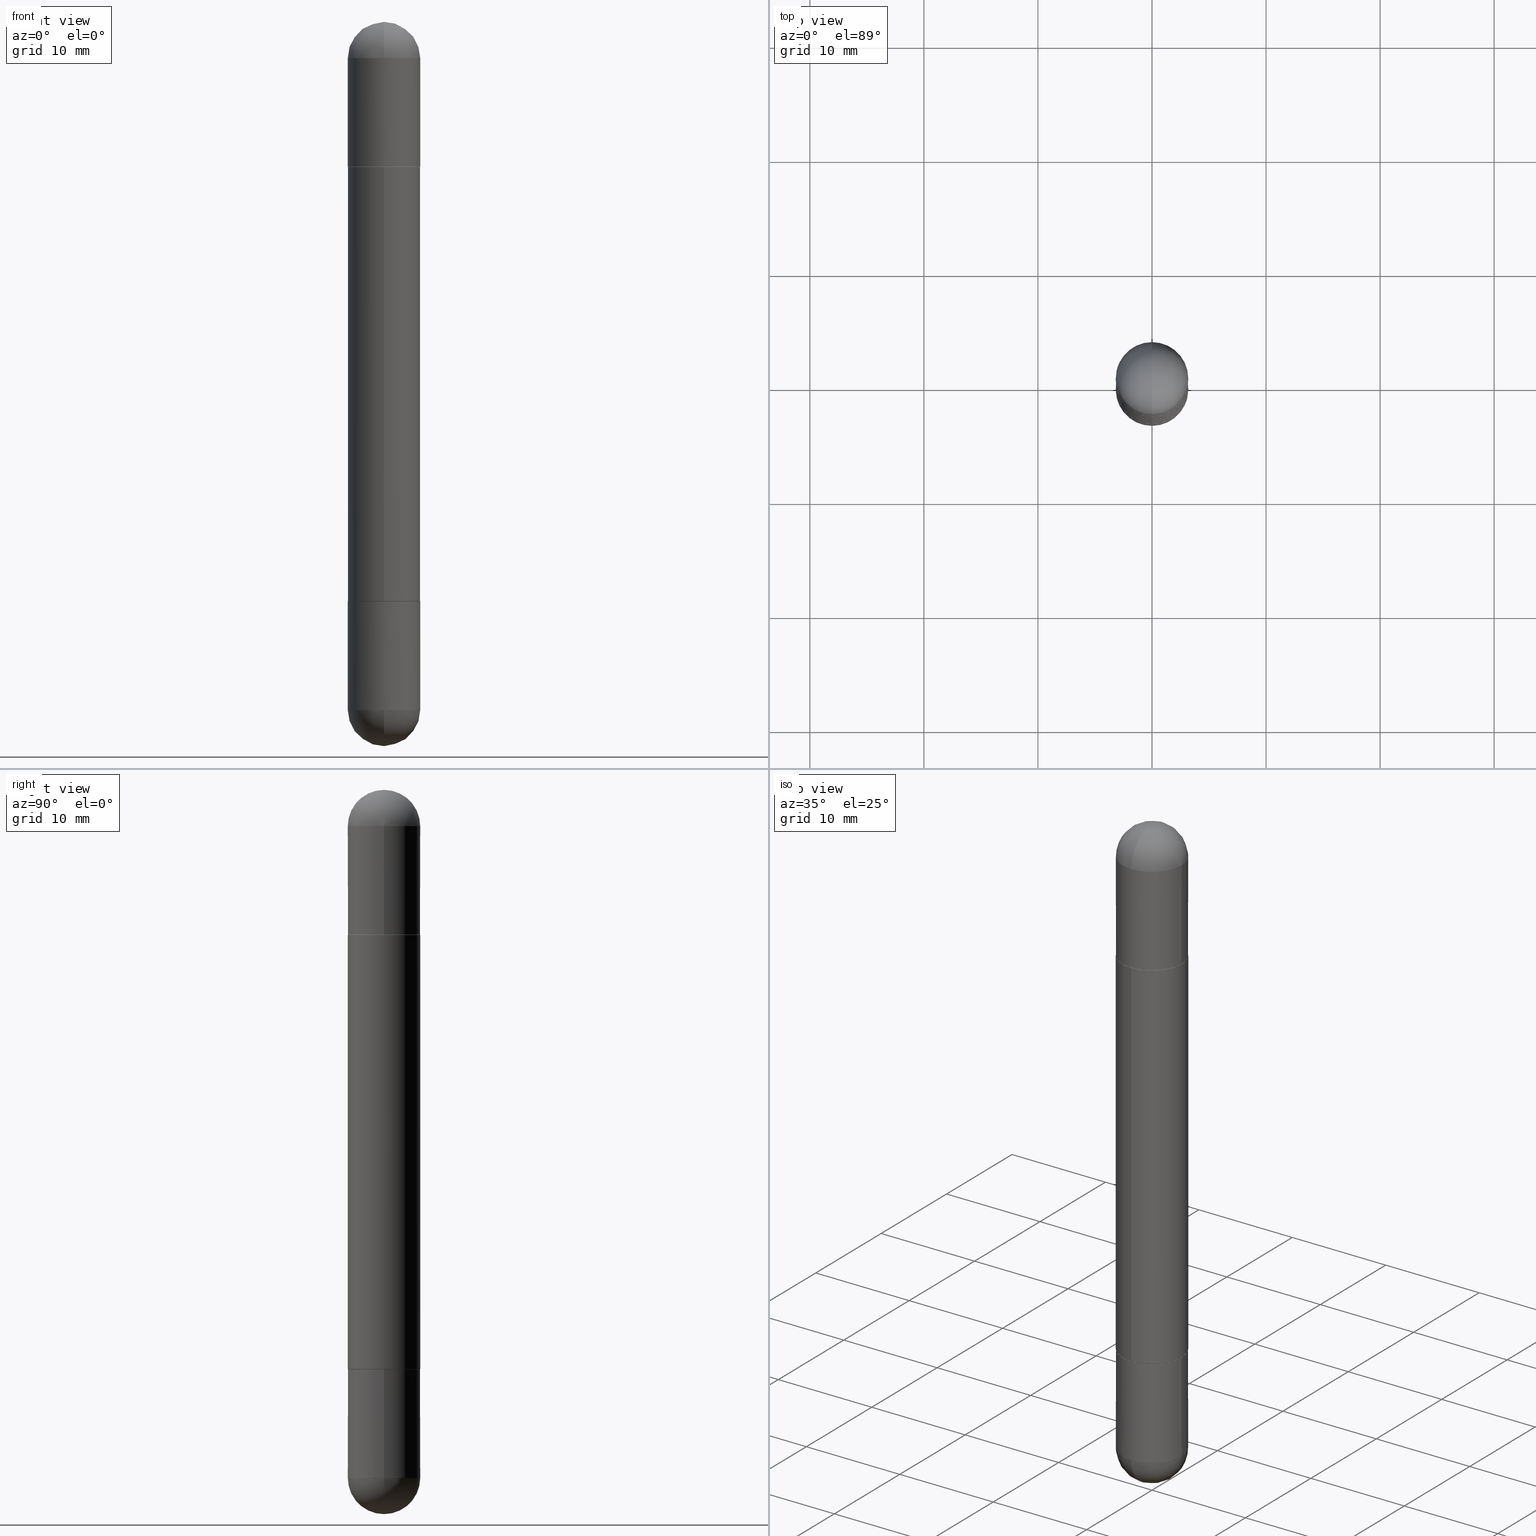
[diagram: canonical four-view strip — front | top / right | iso, engineering-drawing reading convention]
A machine part, canonical four-view strip (front | top / right | iso — engineering-drawing reading convention). The complete STEP part file that produces these views, byte-faithful:
ISO-10303-21;
HEADER;
FILE_DESCRIPTION (( 'STEP AP203' ),
    '1' );
FILE_NAME ('39630.STEP',
    '2024-03-01T12:43:29',
    ( '' ),
    ( '' ),
    'SwSTEP 2.0',
    'SolidWorks 2023',
    '' );
FILE_SCHEMA (( 'CONFIG_CONTROL_DESIGN' ));
ENDSEC;

DATA;
#1 = CYLINDRICAL_SURFACE ( 'NONE', #158, 0.1250000000000000000 ) ;
#2 = CARTESIAN_POINT ( 'NONE',  ( 8.575622497214423328E-16, 0.1250000000000001388, -2.500000000000000000 ) ) ;
#3 = ADVANCED_FACE ( 'NONE', ( #47 ), #584, .T. ) ;
#4 = DIRECTION ( 'NONE',  ( 2.445468806185136597E-29, -3.491481338843145583E-15, 1.000000000000000000 ) ) ;
#5 = ADVANCED_FACE ( 'NONE', ( #107 ), #355, .T. ) ;
#6 = CIRCLE ( 'NONE', #570, 0.1250000000000002776 ) ;
#7 = AXIS2_PLACEMENT_3D ( 'NONE', #714, #529, #594 ) ;
#8 = ADVANCED_FACE ( 'NONE', ( #438 ), #304, .T. ) ;
#9 = CARTESIAN_POINT ( 'NONE',  ( 4.890937612370273194E-29, -6.982962677686291165E-15, -0.5000000000000006661 ) ) ;
#10 = ORIENTED_EDGE ( 'NONE', *, *, #53, .T. ) ;
#11 = DIRECTION ( 'NONE',  ( 6.982962677686265922E-15, 1.000000000000000000, 3.551402391763536859E-15 ) ) ;
#12 = EDGE_CURVE ( 'NONE', #90, #67, #397, .T. ) ;
#13 = CYLINDRICAL_SURFACE ( 'NONE', #110, 0.1250000000000000000 ) ;
#14 = DIRECTION ( 'NONE',  ( -4.937700262165053702E-15, -0.7071067811866175168, -0.7071067811864775177 ) ) ;
#15 = CARTESIAN_POINT ( 'NONE',  ( 0.1250000000000000000, -8.728703347107833388E-16, 6.095220969744919741E-30 ) ) ;
#16 = FACE_OUTER_BOUND ( 'NONE', #142, .T. ) ;
#17 = VERTEX_POINT ( 'NONE', #177 ) ;
#18 = CARTESIAN_POINT ( 'NONE',  ( 8.507017517237187427E-16, 0.1239999999999930186, -0.5000000000000005551 ) ) ;
#19 = AXIS2_PLACEMENT_3D ( 'NONE', #578, #71, #585 ) ;
#20 = PRODUCT_DEFINITION ( 'UNKNOWN', '', #95, #469 ) ;
#21 = CIRCLE ( 'NONE', #443, 0.1250000000000000000 ) ;
#22 = LOCAL_TIME ( 7, 43, 29.00000000000000000, #455 ) ;
#23 = CARTESIAN_POINT ( 'NONE',  ( 0.1250000000000000000, -8.510485763430165164E-15, -0.1250000000000004441 ) ) ;
#24 = ORIENTED_EDGE ( 'NONE', *, *, #302, .F. ) ;
#25 = CARTESIAN_POINT ( 'NONE',  ( 0.1250000000000000000, -8.728703347107833388E-16, -2.500000000000000444 ) ) ;
#26 =( NAMED_UNIT ( * ) PLANE_ANGLE_UNIT ( ) SI_UNIT ( $, .RADIAN. ) );
#27 = ORIENTED_EDGE ( 'NONE', *, *, #437, .F. ) ;
#28 = PERSON_AND_ORGANIZATION ( #364, #524 ) ;
#29 = ORIENTED_EDGE ( 'NONE', *, *, #780, .T. ) ;
#30 = AXIS2_PLACEMENT_3D ( 'NONE', #165, #665, #504 ) ;
#31 = VECTOR ( 'NONE', #117, 39.37007874015748143 ) ;
#32 = AXIS2_PLACEMENT_3D ( 'NONE', #485, #787, #668 ) ;
#33 = ORIENTED_EDGE ( 'NONE', *, *, #744, .T. ) ;
#34 = CARTESIAN_POINT ( 'NONE',  ( 5.476868636775814291E-29, -8.766450547892521992E-15, -2.375000000000000000 ) ) ;
#35 = DIRECTION ( 'NONE',  ( 1.000000000000000000, -6.982962677686270655E-15, 0.000000000000000000 ) ) ;
#36 = DIRECTION ( 'NONE',  ( -1.000000000000000000, 6.982962677686265922E-15, -4.883557194083112901E-29 ) ) ;
#37 = DIRECTION ( 'NONE',  ( -6.982962677686265922E-15, -1.000000000000000000, -3.304654831045479808E-15 ) ) ;
#38 = ORIENTED_EDGE ( 'NONE', *, *, #763, .T. ) ;
#39 =( NAMED_UNIT ( * ) SI_UNIT ( $, .STERADIAN. ) SOLID_ANGLE_UNIT ( ) );
#40 = ORIENTED_EDGE ( 'NONE', *, *, #318, .F. ) ;
#41 = EDGE_CURVE ( 'NONE', #73, #530, #681, .T. ) ;
#42 = DIRECTION ( 'NONE',  ( 2.438088387897960049E-29, -3.491481338843145188E-15, -1.000000000000000000 ) ) ;
#43 = AXIS2_PLACEMENT_3D ( 'NONE', #751, #330, #651 ) ;
#44 = COORDINATED_UNIVERSAL_TIME_OFFSET ( 5, 0, .BEHIND. ) ;
#45 = ORIENTED_EDGE ( 'NONE', *, *, #203, .T. ) ;
#46 = FACE_OUTER_BOUND ( 'NONE', #293, .T. ) ;
#47 = FACE_OUTER_BOUND ( 'NONE', #801, .T. ) ;
#48 = ORIENTED_EDGE ( 'NONE', *, *, #60, .F. ) ;
#49 = ORIENTED_EDGE ( 'NONE', *, *, #225, .T. ) ;
#50 = DIRECTION ( 'NONE',  ( -2.445190853469272491E-29, 3.491879382952348982E-15, -1.000000000000000000 ) ) ;
#51 = CARTESIAN_POINT ( 'NONE',  ( 5.787897026856327965E-29, -9.195231672753244292E-15, -2.561107494060246644E-16 ) ) ;
#52 = ORIENTED_EDGE ( 'NONE', *, *, #357, .T. ) ;
#53 = EDGE_CURVE ( 'NONE', #109, #639, #201, .T. ) ;
#54 = PLANE ( 'NONE',  #656 ) ;
#55 = DIRECTION ( 'NONE',  ( 1.000000000000000000, -6.982962677686270655E-15, 0.000000000000000000 ) ) ;
#56 = CALENDAR_DATE ( 2024, 1, 3 ) ;
#57 = ORIENTED_EDGE ( 'NONE', *, *, #12, .F. ) ;
#58 = DIRECTION ( 'NONE',  ( -6.982962677686265922E-15, -1.000000000000000000, -3.491879382952348982E-15 ) ) ;
#59 = DIRECTION ( 'NONE',  ( -2.445468806185136597E-29, 3.491481338843145583E-15, -1.000000000000000000 ) ) ;
#60 = EDGE_CURVE ( 'NONE', #17, #294, #185, .T. ) ;
#61 = APPROVAL_STATUS ( 'not_yet_approved' ) ;
#62 = CARTESIAN_POINT ( 'NONE',  ( 5.807988414689700538E-29, -8.292268179752471696E-15, -0.1250000000000004441 ) ) ;
#63 = CYLINDRICAL_SURFACE ( 'NONE', #712, 0.1250000000000000000 ) ;
#64 = ADVANCED_FACE ( 'NONE', ( #735 ), #536, .T. ) ;
#65 = DIRECTION ( 'NONE',  ( -2.445190853469272491E-29, 3.491879382952348982E-15, -1.000000000000000000 ) ) ;
#66 = DIRECTION ( 'NONE',  ( -6.982962677686265922E-15, -1.000000000000000000, 3.491879382952348982E-15 ) ) ;
#67 = VERTEX_POINT ( 'NONE', #444 ) ;
#68 = AXIS2_PLACEMENT_3D ( 'NONE', #211, #150, #472 ) ;
#69 = AXIS2_PLACEMENT_3D ( 'NONE', #627, #50, #759 ) ;
#70 = DIRECTION ( 'NONE',  ( -2.445190853469272491E-29, 3.491879382952348982E-15, -1.000000000000000000 ) ) ;
#71 = DIRECTION ( 'NONE',  ( -2.445190853469272491E-29, 3.491879382952348982E-15, -1.000000000000000000 ) ) ;
#72 = FACE_OUTER_BOUND ( 'NONE', #342, .T. ) ;
#73 = VERTEX_POINT ( 'NONE', #624 ) ;
#74 = CARTESIAN_POINT ( 'NONE',  ( 5.807988414689700538E-29, -8.292268179752471696E-15, -2.375000000000000000 ) ) ;
#75 = CARTESIAN_POINT ( 'NONE',  ( 0.000000000000000000, 0.000000000000000000, -2.500000000000000444 ) ) ;
#76 = DIRECTION ( 'NONE',  ( -6.982962677686265922E-15, -1.000000000000000000, 4.370956789862811683E-15 ) ) ;
#77 = ORIENTED_EDGE ( 'NONE', *, *, #543, .F. ) ;
#78 = ADVANCED_FACE ( 'NONE', ( #689 ), #558, .T. ) ;
#79 = CARTESIAN_POINT ( 'NONE',  ( 0.1250000000000000000, -8.728703347107833388E-16, -2.500000000000000444 ) ) ;
#80 = LINE ( 'NONE', #716, #597 ) ;
#81 = AXIS2_PLACEMENT_3D ( 'NONE', #628, #362, #567 ) ;
#82 = FACE_OUTER_BOUND ( 'NONE', #168, .T. ) ;
#83 = CIRCLE ( 'NONE', #236, 0.1239999999999999991 ) ;
#84 = CONICAL_SURFACE ( 'NONE', #555, 0.1239999999999999991, 0.7853981633975507526 ) ;
#85 = CIRCLE ( 'NONE', #388, 0.1250000000000001943 ) ;
#86 = DIRECTION ( 'NONE',  ( 2.445468806185136597E-29, -3.491481338843145583E-15, 1.000000000000000000 ) ) ;
#87 = ORIENTED_EDGE ( 'NONE', *, *, #41, .F. ) ;
#88 = DIRECTION ( 'NONE',  ( 1.000000000000000000, 0.000000000000000000, 0.000000000000000000 ) ) ;
#89 = CARTESIAN_POINT ( 'NONE',  ( 5.807988414689700538E-29, -8.292268179752471696E-15, -2.375000000000000000 ) ) ;
#90 = VERTEX_POINT ( 'NONE', #51 ) ;
#91 = EDGE_CURVE ( 'NONE', #433, #307, #762, .T. ) ;
#92 = AXIS2_PLACEMENT_3D ( 'NONE', #551, #114, #237 ) ;
#93 = AXIS2_PLACEMENT_3D ( 'NONE', #137, #210, #538 ) ;
#94 = CARTESIAN_POINT ( 'NONE',  ( 4.890381706938544982E-29, -6.983758765904696386E-15, -0.5000000000000009992 ) ) ;
#95 = PRODUCT_DEFINITION_FORMATION_WITH_SPECIFIED_SOURCE ( 'ANY', '', #664, .NOT_KNOWN. ) ;
#96 = ORIENTED_EDGE ( 'NONE', *, *, #437, .T. ) ;
#97 = DIRECTION ( 'NONE',  ( -6.982962677686265922E-15, -1.000000000000000000, 4.370956789862811683E-15 ) ) ;
#98 = APPLICATION_CONTEXT ( 'configuration controlled 3d designs of mechanical parts and assemblies' ) ;
#99 = FACE_OUTER_BOUND ( 'NONE', #194, .T. ) ;
#100 = APPLICATION_PROTOCOL_DEFINITION ( 'international standard', 'config_control_design', 1994, #545 ) ;
#101 = ORIENTED_EDGE ( 'NONE', *, *, #719, .T. ) ;
#102 = EDGE_CURVE ( 'NONE', #782, #423, #701, .T. ) ;
#103 = CARTESIAN_POINT ( 'NONE',  ( 4.890381706938544982E-29, -6.983758765904696386E-15, -0.5000000000000009992 ) ) ;
#104 = COORDINATED_UNIVERSAL_TIME_OFFSET ( 5, 0, .BEHIND. ) ;
#105 = ORIENTED_EDGE ( 'NONE', *, *, #147, .F. ) ;
#106 = CARTESIAN_POINT ( 'NONE',  ( 5.476868636775814291E-29, -8.766450547892521992E-15, -0.1250000000000004441 ) ) ;
#107 = FACE_OUTER_BOUND ( 'NONE', #620, .T. ) ;
#108 = VECTOR ( 'NONE', #589, 39.37007874015748143 ) ;
#109 = VERTEX_POINT ( 'NONE', #790 ) ;
#110 = AXIS2_PLACEMENT_3D ( 'NONE', #75, #278, #779 ) ;
#111 = PERSON_AND_ORGANIZATION_ROLE ( 'classification_officer' ) ;
#112 = VERTEX_POINT ( 'NONE', #489 ) ;
#113 = FACE_OUTER_BOUND ( 'NONE', #363, .T. ) ;
#114 = DIRECTION ( 'NONE',  ( 2.445468806185136597E-29, -3.491481338843145583E-15, 1.000000000000000000 ) ) ;
#115 = PERSON_AND_ORGANIZATION_ROLE ( 'design_supplier' ) ;
#116 = ORIENTED_EDGE ( 'NONE', *, *, #602, .T. ) ;
#117 = DIRECTION ( 'NONE',  ( -2.445468806185136877E-29, 3.491481338843145188E-15, -1.000000000000000000 ) ) ;
#118 = DIRECTION ( 'NONE',  ( 1.000000000000000000, -6.982962677686265922E-15, -4.883557194083112901E-29 ) ) ;
#119 = CALENDAR_DATE ( 2024, 1, 3 ) ;
#120 = ORIENTED_EDGE ( 'NONE', *, *, #282, .T. ) ;
#121 = MANIFOLD_SOLID_BREP ( 'Body-Move/Copy2[1]', #492 ) ;
#122 = DIRECTION ( 'NONE',  ( 2.445468806185136597E-29, -3.491481338843145583E-15, 1.000000000000000000 ) ) ;
#123 = DIRECTION ( 'NONE',  ( -2.445190853469272491E-29, 3.491879382952348982E-15, -1.000000000000000000 ) ) ;
#124 = EDGE_CURVE ( 'NONE', #73, #109, #340, .T. ) ;
#125 = APPROVAL_ROLE ( '' ) ;
#126 = ORIENTED_EDGE ( 'NONE', *, *, #592, .T. ) ;
#127 = CIRCLE ( 'NONE', #226, 0.1250000000000000000 ) ;
#128 = CARTESIAN_POINT ( 'NONE',  ( 4.890381706938545543E-29, -6.983758765904697175E-15, -0.5000000000000006661 ) ) ;
#129 = AXIS2_PLACEMENT_3D ( 'NONE', #806, #753, #195 ) ;
#130 = CC_DESIGN_APPROVAL ( #369, ( #20 ) ) ;
#131 = ADVANCED_FACE ( 'NONE', ( #99 ), #428, .F. ) ;
#132 = LINE ( 'NONE', #448, #285 ) ;
#133 = CARTESIAN_POINT ( 'NONE',  ( 4.890381706938544982E-29, -6.983758765904696386E-15, -0.5000000000000009992 ) ) ;
#134 = EDGE_CURVE ( 'NONE', #563, #727, #235, .T. ) ;
#135 = DIRECTION ( 'NONE',  ( 2.445190853469272491E-29, -3.491879382952348982E-15, 1.000000000000000000 ) ) ;
#136 = MANIFOLD_SOLID_BREP ( 'Mirror4[1]', #367 ) ;
#137 = CARTESIAN_POINT ( 'NONE',  ( 5.807988414689700538E-29, -8.292268179752471696E-15, -0.1250000000000004441 ) ) ;
#138 = ORIENTED_EDGE ( 'NONE', *, *, #218, .F. ) ;
#139 = LINE ( 'NONE', #395, #275 ) ;
#140 = PLANE ( 'NONE',  #546 ) ;
#141 = DIRECTION ( 'NONE',  ( -2.445190853469272491E-29, 3.491879382952348982E-15, 1.000000000000000000 ) ) ;
#142 = EDGE_LOOP ( 'NONE', ( #736, #224, #52, #126 ) ) ;
#143 = AXIS2_PLACEMENT_3D ( 'NONE', #241, #234, #500 ) ;
#144 = AXIS2_PLACEMENT_3D ( 'NONE', #323, #654, #598 ) ;
#145 = CARTESIAN_POINT ( 'NONE',  ( -8.658873720330480207E-16, -0.1240000000000069796, -1.999999999999999112 ) ) ;
#146 = CIRCLE ( 'NONE', #416, 0.1250000000000002776 ) ;
#147 = EDGE_CURVE ( 'NONE', #421, #112, #646, .T. ) ;
#148 = DIRECTION ( 'NONE',  ( 2.445468806185136597E-29, -3.491481338843145583E-15, 1.000000000000000000 ) ) ;
#149 = VERTEX_POINT ( 'NONE', #740 ) ;
#150 = DIRECTION ( 'NONE',  ( -2.445468806185136597E-29, 3.491481338843145583E-15, 1.000000000000000000 ) ) ;
#151 = DIRECTION ( 'NONE',  ( 1.000000000000000000, -6.982962677686266711E-15, 4.876176775795935793E-29 ) ) ;
#152 = ADVANCED_FACE ( 'NONE', ( #82 ), #809, .T. ) ;
#153 = ORIENTED_EDGE ( 'NONE', *, *, #526, .T. ) ;
#154 = DIRECTION ( 'NONE',  ( 4.851104656541460468E-15, 0.7071067811866224018, -0.7071067811864726327 ) ) ;
#155 = CARTESIAN_POINT ( 'NONE',  ( 4.890381706938544982E-29, -6.983758765904696386E-15, -1.999999999999999778 ) ) ;
#156 =( LENGTH_UNIT ( ) NAMED_UNIT ( * ) SI_UNIT ( $, .METRE. ) );
#157 = AXIS2_PLACEMENT_3D ( 'NONE', #375, #309, #807 ) ;
#158 = AXIS2_PLACEMENT_3D ( 'NONE', #743, #748, #151 ) ;
#159 = EDGE_CURVE ( 'NONE', #290, #439, #473, .T. ) ;
#160 = CARTESIAN_POINT ( 'NONE',  ( 8.575622497214423328E-16, 0.1250000000000001388, -2.500000000000000000 ) ) ;
#161 = CC_DESIGN_PERSON_AND_ORGANIZATION_ASSIGNMENT ( #815, #111, ( #206 ) ) ;
#162 = ORIENTED_EDGE ( 'NONE', *, *, #520, .T. ) ;
#163 = CARTESIAN_POINT ( 'NONE',  ( 5.476868636775814291E-29, -8.766450547892521992E-15, -0.1250000000000004441 ) ) ;
#164 = EDGE_CURVE ( 'NONE', #727, #240, #477, .T. ) ;
#165 = CARTESIAN_POINT ( 'NONE',  ( 0.000000000000000000, 0.000000000000000000, -2.500000000000000444 ) ) ;
#166 = DIRECTION ( 'NONE',  ( 1.000000000000000000, -6.860497997771530774E-15, -4.840798879624142912E-29 ) ) ;
#167 = EDGE_LOOP ( 'NONE', ( #229, #381, #120, #512 ) ) ;
#168 = EDGE_LOOP ( 'NONE', ( #499, #231, #746, #387 ) ) ;
#169 = AXIS2_PLACEMENT_3D ( 'NONE', #803, #358, #35 ) ;
#170 = AXIS2_PLACEMENT_3D ( 'NONE', #155, #412, #383 ) ;
#171 = DIRECTION ( 'NONE',  ( 1.000000000000000000, -6.982962677686270655E-15, 0.000000000000000000 ) ) ;
#172 = AXIS2_PLACEMENT_3D ( 'NONE', #291, #86, #718 ) ;
#173 = VERTEX_POINT ( 'NONE', #778 ) ;
#174 = EDGE_CURVE ( 'NONE', #307, #173, #693, .T. ) ;
#175 = CARTESIAN_POINT ( 'NONE',  ( 5.476868636775814291E-29, -8.766450547892521992E-15, -0.1250000000000004441 ) ) ;
#176 = EDGE_LOOP ( 'NONE', ( #57, #767, #698, #435 ) ) ;
#177 = CARTESIAN_POINT ( 'NONE',  ( 8.846257060213744265E-16, 0.1239999999999930186, -2.000000000000000444 ) ) ;
#178 = ORIENTED_EDGE ( 'NONE', *, *, #174, .F. ) ;
#179 = DATE_AND_TIME ( #575, #557 ) ;
#180 = EDGE_LOOP ( 'NONE', ( #429, #502, #414, #178, #316 ) ) ;
#181 = DIRECTION ( 'NONE',  ( -6.982962677686265922E-15, -1.000000000000000000, -4.370956789862816416E-15 ) ) ;
#182 = DATE_AND_TIME ( #239, #599 ) ;
#183 = EDGE_LOOP ( 'NONE', ( #77, #511, #400, #816 ) ) ;
#184 = DIRECTION ( 'NONE',  ( -0.000000000000000000, -0.000000000000000000, -1.000000000000000000 ) ) ;
#185 = LINE ( 'NONE', #245, #343 ) ;
#186 = CLOSED_SHELL ( 'NONE', ( #78, #253, #517, #401, #335 ) ) ;
#187 = AXIS2_PLACEMENT_3D ( 'NONE', #802, #184, #259 ) ;
#188 = EDGE_LOOP ( 'NONE', ( #105, #729, #516, #591 ) ) ;
#189 = CC_DESIGN_SECURITY_CLASSIFICATION ( #206, ( #95 ) ) ;
#190 = DIRECTION ( 'NONE',  ( 2.445190853469272491E-29, -3.491879382952348982E-15, 1.000000000000000000 ) ) ;
#191 = FACE_OUTER_BOUND ( 'NONE', #805, .T. ) ;
#192 = CARTESIAN_POINT ( 'NONE',  ( 8.575622497214919324E-16, 0.1249999999999932693, -0.5010000000000006670 ) ) ;
#193 = PERSON_AND_ORGANIZATION_ROLE ( 'creator' ) ;
#194 = EDGE_LOOP ( 'NONE', ( #738, #405 ) ) ;
#195 = DIRECTION ( 'NONE',  ( -7.105427357601000281E-15, -1.000000000000000000, 0.000000000000000000 ) ) ;
#196 = CARTESIAN_POINT ( 'NONE',  ( -0.1250000000000000000, -6.749437009019255804E-15, -2.000000000000000000 ) ) ;
#197 = APPROVAL_ROLE ( '' ) ;
#198 = ORIENTED_EDGE ( 'NONE', *, *, #218, .T. ) ;
#199 = DIRECTION ( 'NONE',  ( -6.982962677686265922E-15, -1.000000000000000000, -3.278217592397108762E-15 ) ) ;
#200 = CARTESIAN_POINT ( 'NONE',  ( 8.728703347108321496E-16, 0.1249999999999930195, -0.5000000000000001110 ) ) ;
#201 = CIRCLE ( 'NONE', #169, 0.1250000000000000000 ) ;
#202 = CIRCLE ( 'NONE', #537, 0.1250000000000000000 ) ;
#203 = EDGE_CURVE ( 'NONE', #655, #243, #621, .T. ) ;
#204 = CARTESIAN_POINT ( 'NONE',  ( 4.887936516085074964E-29, -6.980266886521743346E-15, -0.5010000000000010001 ) ) ;
#205 = ORIENTED_EDGE ( 'NONE', *, *, #102, .T. ) ;
#206 = SECURITY_CLASSIFICATION ( '', '', #242 ) ;
#207 = CARTESIAN_POINT ( 'NONE',  ( -8.728703347107363030E-16, -0.1250000000000072442, -1.998999999999999000 ) ) ;
#208 = ORIENTED_EDGE ( 'NONE', *, *, #450, .T. ) ;
#209 = DIRECTION ( 'NONE',  ( 6.982962677686265922E-15, 1.000000000000000000, -4.370956789862814839E-15 ) ) ;
#210 = DIRECTION ( 'NONE',  ( 2.445468806185136597E-29, -3.491481338843145583E-15, 1.000000000000000000 ) ) ;
#211 = CARTESIAN_POINT ( 'NONE',  ( 4.890937612370273194E-29, -6.982962677686291165E-15, -2.000000000000000000 ) ) ;
#212 = DIRECTION ( 'NONE',  ( 1.000000000000000000, -6.982962677686270655E-15, 0.000000000000000000 ) ) ;
#213 = AXIS2_PLACEMENT_3D ( 'NONE', #319, #647, #312 ) ;
#214 = CIRCLE ( 'NONE', #637, 0.1250000000000000000 ) ;
#215 = CARTESIAN_POINT ( 'NONE',  ( 0.1250000000000000000, -8.510485763430165164E-15, -0.1250000000000004441 ) ) ;
#216 = AXIS2_PLACEMENT_3D ( 'NONE', #723, #230, #97 ) ;
#217 = CARTESIAN_POINT ( 'NONE',  ( 4.890937612370273194E-29, -6.982962677686291165E-15, -0.5000000000000006661 ) ) ;
#218 = EDGE_CURVE ( 'NONE', #568, #786, #6, .T. ) ;
#219 = ORIENTED_EDGE ( 'NONE', *, *, #53, .F. ) ;
#220 = CARTESIAN_POINT ( 'NONE',  ( -8.658873720330480207E-16, -0.1240000000000069796, -0.5000000000000013323 ) ) ;
#221 = CARTESIAN_POINT ( 'NONE',  ( 0.000000000000000000, 0.000000000000000000, 0.000000000000000000 ) ) ;
#222 = ORIENTED_EDGE ( 'NONE', *, *, #641, .T. ) ;
#223 = EDGE_CURVE ( 'NONE', #439, #287, #593, .T. ) ;
#224 = ORIENTED_EDGE ( 'NONE', *, *, #425, .F. ) ;
#225 = EDGE_CURVE ( 'NONE', #639, #695, #653, .T. ) ;
#226 = AXIS2_PLACEMENT_3D ( 'NONE', #74, #345, #55 ) ;
#227 = VECTOR ( 'NONE', #123, 39.37007874015748143 ) ;
#228 =( GEOMETRIC_REPRESENTATION_CONTEXT ( 3 ) GLOBAL_UNCERTAINTY_ASSIGNED_CONTEXT ( ( #273 ) ) GLOBAL_UNIT_ASSIGNED_CONTEXT ( ( #417, #26, #39 ) ) REPRESENTATION_CONTEXT ( 'NONE', 'WORKASPACE' ) );
#229 = ORIENTED_EDGE ( 'NONE', *, *, #261, .F. ) ;
#230 = DIRECTION ( 'NONE',  ( -2.445190853469272491E-29, 3.491879382952348982E-15, 1.000000000000000000 ) ) ;
#231 = ORIENTED_EDGE ( 'NONE', *, *, #60, .T. ) ;
#232 = CARTESIAN_POINT ( 'NONE',  ( 4.887936516085074964E-29, -6.980266886521743346E-15, -0.5010000000000010001 ) ) ;
#233 = EDGE_CURVE ( 'NONE', #359, #290, #127, .T. ) ;
#234 = DIRECTION ( 'NONE',  ( -2.445468806185136597E-29, 3.491481338843145583E-15, -1.000000000000000000 ) ) ;
#235 = CIRCLE ( 'NONE', #508, 0.1239999999999999991 ) ;
#236 = AXIS2_PLACEMENT_3D ( 'NONE', #133, #777, #341 ) ;
#237 = DIRECTION ( 'NONE',  ( 1.000000000000000000, -6.982962677686270655E-15, 0.000000000000000000 ) ) ;
#238 = ORIENTED_EDGE ( 'NONE', *, *, #788, .F. ) ;
#239 = CALENDAR_DATE ( 2024, 1, 3 ) ;
#240 = VERTEX_POINT ( 'NONE', #192 ) ;
#241 = CARTESIAN_POINT ( 'NONE',  ( 0.000000000000000000, 0.000000000000000000, -2.500000000000000444 ) ) ;
#242 = SECURITY_CLASSIFICATION_LEVEL ( 'unclassified' ) ;
#243 = VERTEX_POINT ( 'NONE', #220 ) ;
#244 = DIRECTION ( 'NONE',  ( -2.445190853469272491E-29, 3.491879382952348982E-15, -1.000000000000000000 ) ) ;
#245 = CARTESIAN_POINT ( 'NONE',  ( 8.810729923425729363E-16, 0.1239999999999930186, -2.000000000000000444 ) ) ;
#246 = PERSON_AND_ORGANIZATION ( #364, #524 ) ;
#247 = ORIENTED_EDGE ( 'NONE', *, *, #124, .T. ) ;
#248 = CARTESIAN_POINT ( 'NONE',  ( 4.890937612370273194E-29, -6.982962677686291165E-15, -0.5000000000000006661 ) ) ;
#249 = FACE_OUTER_BOUND ( 'NONE', #662, .T. ) ;
#250 = CARTESIAN_POINT ( 'NONE',  ( 0.000000000000000000, 0.000000000000000000, -2.500000000000000444 ) ) ;
#251 = AXIS2_PLACEMENT_3D ( 'NONE', #272, #313, #270 ) ;
#252 = CIRCLE ( 'NONE', #368, 0.1239999999999999991 ) ;
#253 = ADVANCED_FACE ( 'NONE', ( #633 ), #717, .T. ) ;
#254 = EDGE_LOOP ( 'NONE', ( #684, #576, #162, #350 ) ) ;
#255 = DIRECTION ( 'NONE',  ( -2.445190853469272211E-29, 3.491879382952348982E-15, -1.000000000000000000 ) ) ;
#256 = DIRECTION ( 'NONE',  ( -2.445468806185136597E-29, 3.491481338843145583E-15, 1.000000000000000000 ) ) ;
#257 = LINE ( 'NONE', #601, #325 ) ;
#258 = ORIENTED_EDGE ( 'NONE', *, *, #458, .F. ) ;
#259 = DIRECTION ( 'NONE',  ( -1.000000000000000000, 0.000000000000000000, 0.000000000000000000 ) ) ;
#260 = DIRECTION ( 'NONE',  ( 1.000000000000000000, -6.982962677686270655E-15, 0.000000000000000000 ) ) ;
#261 = EDGE_CURVE ( 'NONE', #655, #568, #257, .T. ) ;
#262 = CARTESIAN_POINT ( 'NONE',  ( 0.000000000000000000, 0.000000000000000000, -2.500000000000000444 ) ) ;
#263 = CARTESIAN_POINT ( 'NONE',  ( 8.728703347108403340E-16, 0.1249999999999915623, -0.1250000000000000000 ) ) ;
#264 = AXIS2_PLACEMENT_3D ( 'NONE', #728, #495, #171 ) ;
#265 = AXIS2_PLACEMENT_3D ( 'NONE', #200, #384, #638 ) ;
#266 = CARTESIAN_POINT ( 'NONE',  ( 5.807988414689700538E-29, -8.292268179752471696E-15, -2.375000000000000000 ) ) ;
#267 = AXIS2_PLACEMENT_3D ( 'NONE', #89, #616, #347 ) ;
#268 = CARTESIAN_POINT ( 'NONE',  ( -0.1250000000000000000, 8.575622497214414453E-16, -2.500000000000000444 ) ) ;
#269 = CYLINDRICAL_SURFACE ( 'NONE', #462, 0.1250000000000000000 ) ;
#270 = DIRECTION ( 'NONE',  ( -6.982962677686265922E-15, -1.000000000000000000, -3.304654831045479808E-15 ) ) ;
#271 = DIRECTION ( 'NONE',  ( 2.438088387897960049E-29, -3.491481338843145188E-15, 1.000000000000000000 ) ) ;
#272 = CARTESIAN_POINT ( 'NONE',  ( 4.890381706938544982E-29, -6.983758765904696386E-15, -0.5000000000000009992 ) ) ;
#273 = UNCERTAINTY_MEASURE_WITH_UNIT (LENGTH_MEASURE( 1.000000000000000082E-05 ), #417, 'distance_accuracy_value', 'NONE');
#274 = VERTEX_POINT ( 'NONE', #769 ) ;
#275 = VECTOR ( 'NONE', #70, 39.37007874015748143 ) ;
#276 = CIRCLE ( 'NONE', #687, 0.1250000000000002776 ) ;
#277 = DIRECTION ( 'NONE',  ( -2.445468806185136877E-29, 3.491481338843145188E-15, -1.000000000000000000 ) ) ;
#278 = DIRECTION ( 'NONE',  ( -2.445468806185136597E-29, 3.491481338843145583E-15, -1.000000000000000000 ) ) ;
#279 = CARTESIAN_POINT ( 'NONE',  ( 3.056488566836591455E-29, -4.364849228690437312E-15, -1.250000000000000222 ) ) ;
#280 = ORIENTED_EDGE ( 'NONE', *, *, #164, .F. ) ;
#281 = DIRECTION ( 'NONE',  ( 2.445190853469272491E-29, -3.491879382952348982E-15, 1.000000000000000000 ) ) ;
#282 = EDGE_CURVE ( 'NONE', #243, #786, #406, .T. ) ;
#283 = MECHANICAL_CONTEXT ( 'NONE', #545, 'mechanical' ) ;
#284 = VECTOR ( 'NONE', #814, 39.37007874015748143 ) ;
#285 = VECTOR ( 'NONE', #379, 39.37007874015748143 ) ;
#286 = ORIENTED_EDGE ( 'NONE', *, *, #634, .F. ) ;
#287 = VERTEX_POINT ( 'NONE', #480 ) ;
#288 = ADVANCED_FACE ( 'NONE', ( #515 ), #755, .T. ) ;
#289 = DIRECTION ( 'NONE',  ( -6.982962677686265922E-15, -1.000000000000000000, 4.406206441393973340E-15 ) ) ;
#290 = VERTEX_POINT ( 'NONE', #707 ) ;
#291 = CARTESIAN_POINT ( 'NONE',  ( 4.890937612370273194E-29, -6.982962677686291165E-15, -0.5000000000000006661 ) ) ;
#292 = EDGE_LOOP ( 'NONE', ( #554, #617 ) ) ;
#293 = EDGE_LOOP ( 'NONE', ( #138, #301, #484, #296 ) ) ;
#294 = VERTEX_POINT ( 'NONE', #468 ) ;
#295 = CARTESIAN_POINT ( 'NONE',  ( 0.000000000000000000, 0.000000000000000000, 0.000000000000000000 ) ) ;
#296 = ORIENTED_EDGE ( 'NONE', *, *, #357, .F. ) ;
#297 = CARTESIAN_POINT ( 'NONE',  ( 4.890381706938544982E-29, -6.983758765904696386E-15, -1.999999999999999778 ) ) ;
#298 = EDGE_LOOP ( 'NONE', ( #356, #440, #466, #588 ) ) ;
#299 = EDGE_CURVE ( 'NONE', #471, #490, #139, .T. ) ;
#300 = DATE_TIME_ROLE ( 'creation_date' ) ;
#301 = ORIENTED_EDGE ( 'NONE', *, *, #360, .T. ) ;
#302 = EDGE_CURVE ( 'NONE', #287, #371, #442, .T. ) ;
#303 = FACE_OUTER_BOUND ( 'NONE', #373, .T. ) ;
#304 = CYLINDRICAL_SURFACE ( 'NONE', #774, 0.1250000000000001388 ) ;
#305 = ORIENTED_EDGE ( 'NONE', *, *, #361, .F. ) ;
#306 = EDGE_CURVE ( 'NONE', #377, #705, #710, .T. ) ;
#307 = VERTEX_POINT ( 'NONE', #215 ) ;
#308 = DIRECTION ( 'NONE',  ( 1.000000000000000000, -6.982962677686270655E-15, 0.000000000000000000 ) ) ;
#309 = DIRECTION ( 'NONE',  ( -1.000000000000000000, 6.982962677686265922E-15, 4.883557194083112340E-29 ) ) ;
#310 = ADVANCED_FACE ( 'NONE', ( #339 ), #140, .F. ) ;
#311 = ORIENTED_EDGE ( 'NONE', *, *, #336, .F. ) ;
#312 = DIRECTION ( 'NONE',  ( 1.000000000000000000, -6.982962677686270655E-15, 0.000000000000000000 ) ) ;
#313 = DIRECTION ( 'NONE',  ( 2.445190853469272491E-29, -3.491879382952348982E-15, 1.000000000000000000 ) ) ;
#314 = AXIS2_PLACEMENT_3D ( 'NONE', #618, #432, #793 ) ;
#315 = VECTOR ( 'NONE', #14, 39.37007874015748143 ) ;
#316 = ORIENTED_EDGE ( 'NONE', *, *, #91, .F. ) ;
#317 = CARTESIAN_POINT ( 'NONE',  ( 8.575622497214919324E-16, 0.1249999999999932693, -0.5010000000000006670 ) ) ;
#318 = EDGE_CURVE ( 'NONE', #423, #73, #711, .T. ) ;
#319 = CARTESIAN_POINT ( 'NONE',  ( 5.807988414689700538E-29, -8.292268179752471696E-15, -0.1250000000000004441 ) ) ;
#320 = PERSON_AND_ORGANIZATION ( #364, #524 ) ;
#321 = DIRECTION ( 'NONE',  ( 6.982962677686265922E-15, 1.000000000000000000, 3.551402391763536859E-15 ) ) ;
#322 = ADVANCED_FACE ( 'NONE', ( #249 ), #730, .T. ) ;
#323 = CARTESIAN_POINT ( 'NONE',  ( 0.000000000000000000, 0.000000000000000000, -2.500000000000000444 ) ) ;
#324 = CARTESIAN_POINT ( 'NONE',  ( 0.000000000000000000, 0.000000000000000000, -1.250000000000000222 ) ) ;
#325 = VECTOR ( 'NONE', #154, 39.37007874015748143 ) ;
#326 = AXIS2_PLACEMENT_3D ( 'NONE', #818, #642, #260 ) ;
#327 = CARTESIAN_POINT ( 'NONE',  ( 8.541320007226054361E-16, 0.1239999999999930186, -0.5000000000000005551 ) ) ;
#328 = CIRCLE ( 'NONE', #713, 0.1250000000000001943 ) ;
#329 = EDGE_LOOP ( 'NONE', ( #456, #365, #625, #153 ) ) ;
#330 = DIRECTION ( 'NONE',  ( -2.445468806185136597E-29, 3.491481338843145583E-15, 1.000000000000000000 ) ) ;
#331 = DIRECTION ( 'NONE',  ( 1.000000000000000000, -6.982962677686266711E-15, 0.000000000000000000 ) ) ;
#332 = CARTESIAN_POINT ( 'NONE',  ( -8.575622497213856334E-16, -0.1250000000000086320, -0.1250000000000008882 ) ) ;
#333 = DIRECTION ( 'NONE',  ( -1.000000000000000000, 0.000000000000000000, 0.000000000000000000 ) ) ;
#334 = ORIENTED_EDGE ( 'NONE', *, *, #134, .T. ) ;
#335 = ADVANCED_FACE ( 'NONE', ( #191 ), #63, .T. ) ;
#336 = EDGE_CURVE ( 'NONE', #149, #274, #702, .T. ) ;
#337 = DIRECTION ( 'NONE',  ( 2.445190853469272491E-29, -3.491879382952348982E-15, 1.000000000000000000 ) ) ;
#338 = ORIENTED_EDGE ( 'NONE', *, *, #306, .T. ) ;
#339 = FACE_OUTER_BOUND ( 'NONE', #292, .T. ) ;
#340 = CIRCLE ( 'NONE', #264, 0.1250000000000000000 ) ;
#341 = DIRECTION ( 'NONE',  ( -6.982962677686265922E-15, -1.000000000000000000, -3.304654831045479808E-15 ) ) ;
#342 = EDGE_LOOP ( 'NONE', ( #496, #205, #606, #247 ) ) ;
#343 = VECTOR ( 'NONE', #370, 39.37007874015748143 ) ;
#344 = CIRCLE ( 'NONE', #129, 0.1250000000000001943 ) ;
#345 = DIRECTION ( 'NONE',  ( -2.445468806185136597E-29, 3.491481338843145583E-15, 1.000000000000000000 ) ) ;
#346 = CC_DESIGN_PERSON_AND_ORGANIZATION_ASSIGNMENT ( #694, #115, ( #95 ) ) ;
#347 = DIRECTION ( 'NONE',  ( 1.000000000000000000, -6.982962677686270655E-15, 0.000000000000000000 ) ) ;
#348 = ORIENTED_EDGE ( 'NONE', *, *, #812, .F. ) ;
#349 = CARTESIAN_POINT ( 'NONE',  ( 5.787897026856327965E-29, -9.195231672753244292E-15, -2.561107494060246644E-16 ) ) ;
#350 = ORIENTED_EDGE ( 'NONE', *, *, #667, .F. ) ;
#351 = DIRECTION ( 'NONE',  ( 1.000000000000000000, -6.860497997771530774E-15, -4.840798879624142912E-29 ) ) ;
#352 = AXIS2_PLACEMENT_3D ( 'NONE', #449, #645, #209 ) ;
#353 = AXIS2_PLACEMENT_3D ( 'NONE', #106, #507, #761 ) ;
#354 = CONICAL_SURFACE ( 'NONE', #32, 0.1239999999999999991, 0.7853981633975507526 ) ;
#355 = CYLINDRICAL_SURFACE ( 'NONE', #30, 0.1250000000000000000 ) ;
#356 = ORIENTED_EDGE ( 'NONE', *, *, #792, .F. ) ;
#357 = EDGE_CURVE ( 'NONE', #786, #705, #132, .T. ) ;
#358 = DIRECTION ( 'NONE',  ( 2.445468806185136597E-29, -3.491481338843145583E-15, 1.000000000000000000 ) ) ;
#359 = VERTEX_POINT ( 'NONE', #632 ) ;
#360 = EDGE_CURVE ( 'NONE', #568, #294, #390, .T. ) ;
#361 = EDGE_CURVE ( 'NONE', #371, #287, #415, .T. ) ;
#362 = DIRECTION ( 'NONE',  ( -1.000000000000000000, 6.982962677686265922E-15, 4.883557194083112340E-29 ) ) ;
#363 = EDGE_LOOP ( 'NONE', ( #709, #506, #258, #752 ) ) ;
#364 = PERSON ( 'UNSPECIFIED', 'UNSPECIFIED', 'UNSPECIFIED', ('UNSPECIFIED'), ('UNSPECIFIED'), ('UNSPECIFIED') ) ;
#365 = ORIENTED_EDGE ( 'NONE', *, *, #12, .T. ) ;
#366 = CARTESIAN_POINT ( 'NONE',  ( -0.1250000000000000000, -6.780053178997939591E-15, -0.5000000000000006661 ) ) ;
#367 = CLOSED_SHELL ( 'NONE', ( #497, #680, #310, #544, #322, #8 ) ) ;
#368 = AXIS2_PLACEMENT_3D ( 'NONE', #649, #337, #391 ) ;
#369 = APPROVAL ( #61, 'UNSPECIFIED' ) ;
#370 = DIRECTION ( 'NONE',  ( 5.024295867788576727E-15, 0.7071067811866224018, 0.7071067811864726327 ) ) ;
#371 = VERTEX_POINT ( 'NONE', #196 ) ;
#372 = DATE_AND_TIME ( #800, #22 ) ;
#373 = EDGE_LOOP ( 'NONE', ( #580, #45 ) ) ;
#374 = DIRECTION ( 'NONE',  ( -2.445190853469272491E-29, 3.491879382952348982E-15, 1.000000000000000000 ) ) ;
#375 = CARTESIAN_POINT ( 'NONE',  ( 5.476868636775814291E-29, -8.766450547892521992E-15, -0.1250000000000004441 ) ) ;
#376 = APPROVAL_DATE_TIME ( #182, #660 ) ;
#377 = VERTEX_POINT ( 'NONE', #754 ) ;
#378 = SPHERICAL_SURFACE ( 'NONE', #648, 0.1250000000000001943 ) ;
#379 = DIRECTION ( 'NONE',  ( -2.445190853469272491E-29, 3.491879382952348982E-15, -1.000000000000000000 ) ) ;
#380 = DIRECTION ( 'NONE',  ( -6.982962677686265922E-15, -1.000000000000000000, 4.406206441393973340E-15 ) ) ;
#381 = ORIENTED_EDGE ( 'NONE', *, *, #614, .F. ) ;
#382 = CC_DESIGN_PERSON_AND_ORGANIZATION_ASSIGNMENT ( #28, #757, ( #664 ) ) ;
#383 = DIRECTION ( 'NONE',  ( -6.982962677686265922E-15, -1.000000000000000000, 4.406206441393973340E-15 ) ) ;
#384 = DIRECTION ( 'NONE',  ( 2.438088387897960049E-29, -3.491481338843145188E-15, 1.000000000000000000 ) ) ;
#385 = AXIS2_PLACEMENT_3D ( 'NONE', #94, #745, #553 ) ;
#386 = PERSON_AND_ORGANIZATION ( #364, #524 ) ;
#387 = ORIENTED_EDGE ( 'NONE', *, *, #306, .F. ) ;
#388 = AXIS2_PLACEMENT_3D ( 'NONE', #175, #166, #430 ) ;
#389 = DIRECTION ( 'NONE',  ( -2.445190853469272211E-29, 3.491879382952348982E-15, -1.000000000000000000 ) ) ;
#390 = LINE ( 'NONE', #2, #227 ) ;
#391 = DIRECTION ( 'NONE',  ( -6.982962677686265922E-15, -1.000000000000000000, -3.304654831045479808E-15 ) ) ;
#392 = DIRECTION ( 'NONE',  ( -6.982962677686265922E-15, -1.000000000000000000, -3.278217592397108762E-15 ) ) ;
#393 = FACE_OUTER_BOUND ( 'NONE', #254, .T. ) ;
#394 = EDGE_LOOP ( 'NONE', ( #48, #96, #338, #348 ) ) ;
#395 = CARTESIAN_POINT ( 'NONE',  ( -8.728703347107842263E-16, -0.1250000000000001388, -2.500000000000001332 ) ) ;
#396 = DIRECTION ( 'NONE',  ( 0.000000000000000000, 0.000000000000000000, 1.000000000000000000 ) ) ;
#397 = CIRCLE ( 'NONE', #81, 0.1250000000000001943 ) ;
#398 = AXIS2_PLACEMENT_3D ( 'NONE', #204, #190, #199 ) ;
#399 = CARTESIAN_POINT ( 'NONE',  ( 4.887936516085074964E-29, -6.980266886521743346E-15, -1.998999999999999666 ) ) ;
#400 = ORIENTED_EDGE ( 'NONE', *, *, #744, .F. ) ;
#401 = ADVANCED_FACE ( 'NONE', ( #454 ), #697, .F. ) ;
#402 = EDGE_CURVE ( 'NONE', #307, #67, #460, .T. ) ;
#403 = CARTESIAN_POINT ( 'NONE',  ( 4.890381706938544982E-29, -6.983758765904696386E-15, -1.999999999999999778 ) ) ;
#404 = FACE_OUTER_BOUND ( 'NONE', #682, .T. ) ;
#405 = ORIENTED_EDGE ( 'NONE', *, *, #361, .T. ) ;
#406 = LINE ( 'NONE', #534, #596 ) ;
#407 = FACE_OUTER_BOUND ( 'NONE', #808, .T. ) ;
#408 = DIRECTION ( 'NONE',  ( -2.445468806185136877E-29, 3.491481338843145188E-15, 1.000000000000000000 ) ) ;
#409 = ORIENTED_EDGE ( 'NONE', *, *, #641, .F. ) ;
#410 = CC_DESIGN_DATE_AND_TIME_ASSIGNMENT ( #741, #559, ( #206 ) ) ;
#411 = CARTESIAN_POINT ( 'NONE',  ( 4.887936516085074964E-29, -6.980266886521743346E-15, -0.5010000000000010001 ) ) ;
#412 = DIRECTION ( 'NONE',  ( -2.445190853469272491E-29, 3.491879382952348982E-15, 1.000000000000000000 ) ) ;
#413 = DIRECTION ( 'NONE',  ( 0.000000000000000000, 0.000000000000000000, 1.000000000000000000 ) ) ;
#414 = ORIENTED_EDGE ( 'NONE', *, *, #533, .T. ) ;
#415 = CIRCLE ( 'NONE', #547, 0.1250000000000000000 ) ;
#416 = AXIS2_PLACEMENT_3D ( 'NONE', #232, #731, #542 ) ;
#417 =( CONVERSION_BASED_UNIT ( 'INCH', #613 ) LENGTH_UNIT ( ) NAMED_UNIT ( #604 ) );
#418 = MANIFOLD_SOLID_BREP ( 'Mirror4[4]', #747 ) ;
#419 = ORIENTED_EDGE ( 'NONE', *, *, #282, .F. ) ;
#420 = CARTESIAN_POINT ( 'NONE',  ( -0.1250000000000000000, 8.575622497214414453E-16, -2.500000000000000444 ) ) ;
#421 = VERTEX_POINT ( 'NONE', #581 ) ;
#422 = LINE ( 'NONE', #160, #750 ) ;
#423 = VERTEX_POINT ( 'NONE', #263 ) ;
#424 = VECTOR ( 'NONE', #773, 39.37007874015748143 ) ;
#425 = EDGE_CURVE ( 'NONE', #786, #568, #276, .T. ) ;
#426 = AXIS2_PLACEMENT_3D ( 'NONE', #266, #704, #643 ) ;
#427 = CC_DESIGN_APPROVAL ( #799, ( #95 ) ) ;
#428 = PLANE ( 'NONE',  #795 ) ;
#429 = ORIENTED_EDGE ( 'NONE', *, *, #526, .F. ) ;
#430 = DIRECTION ( 'NONE',  ( 6.860497997771529196E-15, 1.000000000000000000, 0.000000000000000000 ) ) ;
#431 = ORIENTED_EDGE ( 'NONE', *, *, #134, .F. ) ;
#432 = DIRECTION ( 'NONE',  ( 1.000000000000000000, -6.982962677686265922E-15, 4.883557194083112340E-29 ) ) ;
#433 = VERTEX_POINT ( 'NONE', #332 ) ;
#434 = APPROVAL_STATUS ( 'not_yet_approved' ) ;
#435 = ORIENTED_EDGE ( 'NONE', *, *, #402, .T. ) ;
#436 = ADVANCED_FACE ( 'NONE', ( #407 ), #13, .T. ) ;
#437 = EDGE_CURVE ( 'NONE', #17, #377, #571, .T. ) ;
#438 = FACE_OUTER_BOUND ( 'NONE', #298, .T. ) ;
#439 = VERTEX_POINT ( 'NONE', #817 ) ;
#440 = ORIENTED_EDGE ( 'NONE', *, *, #763, .F. ) ;
#441 = CARTESIAN_POINT ( 'NONE',  ( 4.890381706938544982E-29, -6.983758765904696386E-15, -1.999999999999999778 ) ) ;
#442 = CIRCLE ( 'NONE', #68, 0.1250000000000000000 ) ;
#443 = AXIS2_PLACEMENT_3D ( 'NONE', #62, #810, #686 ) ;
#444 = CARTESIAN_POINT ( 'NONE',  ( 8.728703347108403340E-16, 0.1249999999999915623, -0.1250000000000000000 ) ) ;
#445 = APPROVAL_ROLE ( '' ) ;
#446 = ORIENTED_EDGE ( 'NONE', *, *, #582, .F. ) ;
#447 = DIRECTION ( 'NONE',  ( -6.982962677686265922E-15, -1.000000000000000000, 4.406206441393973340E-15 ) ) ;
#448 = CARTESIAN_POINT ( 'NONE',  ( -8.728703347107842263E-16, -0.1250000000000001388, -2.500000000000001332 ) ) ;
#449 = CARTESIAN_POINT ( 'NONE',  ( 5.476868636775814291E-29, -8.766450547892521992E-15, -2.375000000000000000 ) ) ;
#450 = EDGE_CURVE ( 'NONE', #639, #423, #214, .T. ) ;
#451 = APPROVAL_DATE_TIME ( #179, #369 ) ;
#452 = ORIENTED_EDGE ( 'NONE', *, *, #667, .T. ) ;
#453 = PLANE ( 'NONE',  #482 ) ;
#454 = FACE_OUTER_BOUND ( 'NONE', #539, .T. ) ;
#455 = COORDINATED_UNIVERSAL_TIME_OFFSET ( 5, 0, .BEHIND. ) ;
#456 = ORIENTED_EDGE ( 'NONE', *, *, #756, .F. ) ;
#457 = CARTESIAN_POINT ( 'NONE',  ( -8.728703347107444874E-16, -0.1250000000000044964, -1.250000000000000222 ) ) ;
#458 = EDGE_CURVE ( 'NONE', #490, #691, #610, .T. ) ;
#459 = VECTOR ( 'NONE', #540, 39.37007874015748143 ) ;
#460 = CIRCLE ( 'NONE', #326, 0.1250000000000000000 ) ;
#461 = AXIS2_PLACEMENT_3D ( 'NONE', #279, #479, #333 ) ;
#462 = AXIS2_PLACEMENT_3D ( 'NONE', #221, #608, #481 ) ;
#463 = SPHERICAL_SURFACE ( 'NONE', #7, 0.1250000000000001943 ) ;
#464 = ORIENTED_EDGE ( 'NONE', *, *, #223, .T. ) ;
#465 = DIRECTION ( 'NONE',  ( 1.000000000000000000, -6.982962677686270655E-15, 0.000000000000000000 ) ) ;
#466 = ORIENTED_EDGE ( 'NONE', *, *, #299, .T. ) ;
#467 = CC_DESIGN_PERSON_AND_ORGANIZATION_ASSIGNMENT ( #386, #690, ( #95 ) ) ;
#468 = CARTESIAN_POINT ( 'NONE',  ( 8.575622497214732956E-16, 0.1249999999999932693, -1.999000000000000110 ) ) ;
#469 = DESIGN_CONTEXT ( 'detailed design', #98, 'design' ) ;
#470 = PLANE ( 'NONE',  #523 ) ;
#471 = VERTEX_POINT ( 'NONE', #577 ) ;
#472 = DIRECTION ( 'NONE',  ( 1.000000000000000000, -6.982962677686270655E-15, 0.000000000000000000 ) ) ;
#473 = CIRCLE ( 'NONE', #43, 0.1250000000000000000 ) ;
#474 = CARTESIAN_POINT ( 'NONE',  ( 8.728703347108321496E-16, 0.1249999999999930195, -0.5000000000000001110 ) ) ;
#475 = CC_DESIGN_APPROVAL ( #660, ( #206 ) ) ;
#476 = ORIENTED_EDGE ( 'NONE', *, *, #225, .F. ) ;
#477 = LINE ( 'NONE', #18, #459 ) ;
#478 = ADVANCED_FACE ( 'NONE', ( #678 ), #378, .T. ) ;
#479 = DIRECTION ( 'NONE',  ( -0.000000000000000000, -0.000000000000000000, -1.000000000000000000 ) ) ;
#480 = CARTESIAN_POINT ( 'NONE',  ( 0.1250000000000000000, -7.855833012397075293E-15, -2.000000000000000000 ) ) ;
#481 = DIRECTION ( 'NONE',  ( 1.000000000000000000, -6.982962677686266711E-15, 4.876176775795935793E-29 ) ) ;
#482 = AXIS2_PLACEMENT_3D ( 'NONE', #128, #389, #561 ) ;
#483 = ORIENTED_EDGE ( 'NONE', *, *, #41, .T. ) ;
#484 = ORIENTED_EDGE ( 'NONE', *, *, #812, .T. ) ;
#485 = CARTESIAN_POINT ( 'NONE',  ( 4.890381706938544982E-29, -6.983758765904696386E-15, -0.5000000000000009992 ) ) ;
#486 = EDGE_CURVE ( 'NONE', #377, #17, #732, .T. ) ;
#487 = ORIENTED_EDGE ( 'NONE', *, *, #450, .F. ) ;
#488 = ADVANCED_FACE ( 'NONE', ( #46 ), #630, .T. ) ;
#489 = CARTESIAN_POINT ( 'NONE',  ( 8.728703347108403340E-16, 0.1249999999999915623, -2.375000000000000888 ) ) ;
#490 = VERTEX_POINT ( 'NONE', #457 ) ;
#491 = DIRECTION ( 'NONE',  ( 6.860497997771529196E-15, 1.000000000000000000, 0.000000000000000000 ) ) ;
#492 = CLOSED_SHELL ( 'NONE', ( #739, #288, #772, #131, #574 ) ) ;
#493 = CIRCLE ( 'NONE', #721, 0.1250000000000000000 ) ;
#494 = LOCAL_TIME ( 7, 43, 29.00000000000000000, #505 ) ;
#495 = DIRECTION ( 'NONE',  ( 2.445468806185136597E-29, -3.491481338843145583E-15, 1.000000000000000000 ) ) ;
#496 = ORIENTED_EDGE ( 'NONE', *, *, #780, .F. ) ;
#497 = ADVANCED_FACE ( 'NONE', ( #113 ), #569, .T. ) ;
#498 = PERSON_AND_ORGANIZATION ( #364, #524 ) ;
#499 = ORIENTED_EDGE ( 'NONE', *, *, #486, .T. ) ;
#500 = DIRECTION ( 'NONE',  ( 1.000000000000000000, -6.982962677686266711E-15, 0.000000000000000000 ) ) ;
#501 = APPROVAL_DATE_TIME ( #372, #799 ) ;
#502 = ORIENTED_EDGE ( 'NONE', *, *, #336, .T. ) ;
#503 = FACE_OUTER_BOUND ( 'NONE', #600, .T. ) ;
#504 = DIRECTION ( 'NONE',  ( 1.000000000000000000, -6.982962677686266711E-15, 0.000000000000000000 ) ) ;
#505 = COORDINATED_UNIVERSAL_TIME_OFFSET ( 5, 0, .BEHIND. ) ;
#506 = ORIENTED_EDGE ( 'NONE', *, *, #792, .T. ) ;
#507 = DIRECTION ( 'NONE',  ( 1.000000000000000000, -6.982962677686265922E-15, -4.883557194083112901E-29 ) ) ;
#508 = AXIS2_PLACEMENT_3D ( 'NONE', #103, #674, #37 ) ;
#509 = AXIS2_PLACEMENT_3D ( 'NONE', #399, #141, #76 ) ;
#510 = CARTESIAN_POINT ( 'NONE',  ( 0.000000000000000000, 0.000000000000000000, -2.500000000000000444 ) ) ;
#511 = ORIENTED_EDGE ( 'NONE', *, *, #147, .T. ) ;
#512 = ORIENTED_EDGE ( 'NONE', *, *, #425, .T. ) ;
#513 = SPHERICAL_SURFACE ( 'NONE', #353, 0.1250000000000001943 ) ;
#514 = DIRECTION ( 'NONE',  ( 1.000000000000000000, -6.982962677686270655E-15, 0.000000000000000000 ) ) ;
#515 = FACE_OUTER_BOUND ( 'NONE', #188, .T. ) ;
#516 = ORIENTED_EDGE ( 'NONE', *, *, #233, .F. ) ;
#517 = ADVANCED_FACE ( 'NONE', ( #566 ), #513, .T. ) ;
#518 = DIRECTION ( 'NONE',  ( 1.000000000000000000, -6.982962677686265922E-15, -4.883557194083112901E-29 ) ) ;
#519 = DIRECTION ( 'NONE',  ( -6.982962677686265922E-15, -1.000000000000000000, -4.370956789862816416E-15 ) ) ;
#520 = EDGE_CURVE ( 'NONE', #240, #471, #623, .T. ) ;
#521 = ORIENTED_EDGE ( 'NONE', *, *, #679, .T. ) ;
#522 = CARTESIAN_POINT ( 'NONE',  ( 4.887936516085074964E-29, -6.980266886521743346E-15, -0.5010000000000010001 ) ) ;
#523 = AXIS2_PLACEMENT_3D ( 'NONE', #474, #271, #652 ) ;
#524 = ORGANIZATION ( 'UNSPECIFIED', 'UNSPECIFIED', '' ) ;
#525 = PRODUCT_RELATED_PRODUCT_CATEGORY ( 'detail', '', ( #664 ) ) ;
#526 = EDGE_CURVE ( 'NONE', #149, #433, #21, .T. ) ;
#527 = CYLINDRICAL_SURFACE ( 'NONE', #144, 0.1250000000000001388 ) ;
#528 = EDGE_LOOP ( 'NONE', ( #521, #796, #24, #677, #33 ) ) ;
#529 = DIRECTION ( 'NONE',  ( 1.000000000000000000, -6.982962677686265922E-15, -4.883557194083112901E-29 ) ) ;
#530 = VERTEX_POINT ( 'NONE', #366 ) ;
#531 = CARTESIAN_POINT ( 'NONE',  ( 5.476868636775814291E-29, -8.766450547892521992E-15, -0.1250000000000004441 ) ) ;
#532 = PLANE ( 'NONE',  #670 ) ;
#533 = EDGE_CURVE ( 'NONE', #274, #173, #493, .T. ) ;
#534 = CARTESIAN_POINT ( 'NONE',  ( -8.658873720330480207E-16, -0.1240000000000069796, -0.5000000000000013323 ) ) ;
#535 = ADVANCED_FACE ( 'NONE', ( #303 ), #54, .F. ) ;
#536 = CONICAL_SURFACE ( 'NONE', #784, 0.1239999999999999991, 0.7853981633975507526 ) ;
#537 = AXIS2_PLACEMENT_3D ( 'NONE', #9, #148, #465 ) ;
#538 = DIRECTION ( 'NONE',  ( 1.000000000000000000, -6.982962677686270655E-15, 0.000000000000000000 ) ) ;
#539 = EDGE_LOOP ( 'NONE', ( #409, #609 ) ) ;
#540 = DIRECTION ( 'NONE',  ( 4.851104656541460468E-15, 0.7071067811866224018, -0.7071067811864726327 ) ) ;
#541 = LINE ( 'NONE', #781, #315 ) ;
#542 = DIRECTION ( 'NONE',  ( -6.982962677686265922E-15, -1.000000000000000000, -3.278217592397108762E-15 ) ) ;
#543 = EDGE_CURVE ( 'NONE', #421, #290, #344, .T. ) ;
#544 = ADVANCED_FACE ( 'NONE', ( #503 ), #453, .F. ) ;
#545 = APPLICATION_CONTEXT ( 'configuration controlled 3d designs of mechanical parts and assemblies' ) ;
#546 = AXIS2_PLACEMENT_3D ( 'NONE', #324, #396, #572 ) ;
#547 = AXIS2_PLACEMENT_3D ( 'NONE', #813, #256, #514 ) ;
#548 = APPROVAL_PERSON_ORGANIZATION ( #320, #660, #125 ) ;
#549 = DIRECTION ( 'NONE',  ( -2.445190853469272491E-29, 3.491879382952348982E-15, -1.000000000000000000 ) ) ;
#550 = ORIENTED_EDGE ( 'NONE', *, *, #203, .F. ) ;
#551 = CARTESIAN_POINT ( 'NONE',  ( 5.807988414689700538E-29, -8.292268179752471696E-15, -0.1250000000000004441 ) ) ;
#552 = CC_DESIGN_DATE_AND_TIME_ASSIGNMENT ( #804, #300, ( #20 ) ) ;
#553 = DIRECTION ( 'NONE',  ( -6.982962677686265922E-15, -1.000000000000000000, -3.304654831045479808E-15 ) ) ;
#554 = ORIENTED_EDGE ( 'NONE', *, *, #458, .T. ) ;
#555 = AXIS2_PLACEMENT_3D ( 'NONE', #768, #65, #583 ) ;
#556 = AXIS2_PLACEMENT_3D ( 'NONE', #34, #36, #658 ) ;
#557 = LOCAL_TIME ( 7, 43, 29.00000000000000000, #44 ) ;
#558 = CYLINDRICAL_SURFACE ( 'NONE', #143, 0.1250000000000000000 ) ;
#559 = DATE_TIME_ROLE ( 'classification_date' ) ;
#560 = ORIENTED_EDGE ( 'NONE', *, *, #261, .T. ) ;
#561 = DIRECTION ( 'NONE',  ( -6.982962677686265922E-15, -1.000000000000000000, -3.491879382952348982E-15 ) ) ;
#562 = DIRECTION ( 'NONE',  ( -2.445468806185136877E-29, 3.491481338843145188E-15, -1.000000000000000000 ) ) ;
#563 = VERTEX_POINT ( 'NONE', #640 ) ;
#564 = APPLICATION_PROTOCOL_DEFINITION ( 'international standard', 'config_control_design', 1994, #98 ) ;
#565 = EDGE_LOOP ( 'NONE', ( #446, #635, #659, #464, #305 ) ) ;
#566 = FACE_OUTER_BOUND ( 'NONE', #329, .T. ) ;
#567 = DIRECTION ( 'NONE',  ( -6.982962677686265133E-15, -1.000000000000000000, 0.000000000000000000 ) ) ;
#568 = VERTEX_POINT ( 'NONE', #317 ) ;
#569 = CYLINDRICAL_SURFACE ( 'NONE', #764, 0.1250000000000001388 ) ;
#570 = AXIS2_PLACEMENT_3D ( 'NONE', #411, #281, #573 ) ;
#571 = CIRCLE ( 'NONE', #170, 0.1239999999999999991 ) ;
#572 = DIRECTION ( 'NONE',  ( -1.000000000000000000, 0.000000000000000000, 0.000000000000000000 ) ) ;
#573 = DIRECTION ( 'NONE',  ( -6.982962677686265922E-15, -1.000000000000000000, -3.278217592397108762E-15 ) ) ;
#574 = ADVANCED_FACE ( 'NONE', ( #579 ), #1, .T. ) ;
#575 = CALENDAR_DATE ( 2024, 1, 3 ) ;
#576 = ORIENTED_EDGE ( 'NONE', *, *, #164, .T. ) ;
#577 = CARTESIAN_POINT ( 'NONE',  ( -8.728703347107364016E-16, -0.1250000000000072720, -0.5010000000000014442 ) ) ;
#578 = CARTESIAN_POINT ( 'NONE',  ( 4.890381706938544982E-29, -6.983758765904696386E-15, -0.5000000000000009992 ) ) ;
#579 = FACE_OUTER_BOUND ( 'NONE', #565, .T. ) ;
#580 = ORIENTED_EDGE ( 'NONE', *, *, #614, .T. ) ;
#581 = CARTESIAN_POINT ( 'NONE',  ( 5.787897026856327965E-29, -9.195231672753244292E-15, -2.500000000000000444 ) ) ;
#582 = EDGE_CURVE ( 'NONE', #359, #371, #80, .T. ) ;
#583 = DIRECTION ( 'NONE',  ( -6.982962677686265922E-15, -1.000000000000000000, -3.304654831045479808E-15 ) ) ;
#584 = CONICAL_SURFACE ( 'NONE', #385, 0.1239999999999999991, 0.7853981633975507526 ) ;
#585 = DIRECTION ( 'NONE',  ( -6.982962677686265922E-15, -1.000000000000000000, -3.304654831045479808E-15 ) ) ;
#586 = CIRCLE ( 'NONE', #93, 0.1250000000000000000 ) ;
#587 = FACE_OUTER_BOUND ( 'NONE', #528, .T. ) ;
#588 = ORIENTED_EDGE ( 'NONE', *, *, #661, .F. ) ;
#589 = DIRECTION ( 'NONE',  ( -2.445468806185136877E-29, 3.491481338843145188E-15, 1.000000000000000000 ) ) ;
#590 = CARTESIAN_POINT ( 'NONE',  ( 8.575622497214909463E-16, 0.1249999999999957673, -1.250000000000000222 ) ) ;
#591 = ORIENTED_EDGE ( 'NONE', *, *, #679, .F. ) ;
#592 = EDGE_CURVE ( 'NONE', #705, #294, #797, .T. ) ;
#593 = LINE ( 'NONE', #15, #108 ) ;
#594 = DIRECTION ( 'NONE',  ( 6.982962677686265922E-15, 1.000000000000000000, 3.551402391763536859E-15 ) ) ;
#595 = DIRECTION ( 'NONE',  ( -2.445190853469272491E-29, 3.491879382952348982E-15, 1.000000000000000000 ) ) ;
#596 = VECTOR ( 'NONE', #715, 39.37007874015748143 ) ;
#597 = VECTOR ( 'NONE', #408, 39.37007874015748143 ) ;
#598 = DIRECTION ( 'NONE',  ( -6.982962677686265922E-15, -1.000000000000000000, -4.370956789862816416E-15 ) ) ;
#599 = LOCAL_TIME ( 7, 43, 29.00000000000000000, #104 ) ;
#600 = EDGE_LOOP ( 'NONE', ( #334, #116 ) ) ;
#601 = CARTESIAN_POINT ( 'NONE',  ( 8.507017517237187427E-16, 0.1239999999999930186, -0.5000000000000005551 ) ) ;
#602 = EDGE_CURVE ( 'NONE', #727, #563, #83, .T. ) ;
#603 = CARTESIAN_POINT ( 'NONE',  ( -8.728703347107364016E-16, -0.1250000000000072720, -0.5010000000000014442 ) ) ;
#604 = DIMENSIONAL_EXPONENTS ( 1.000000000000000000, 0.000000000000000000, 0.000000000000000000, 0.000000000000000000, 0.000000000000000000, 0.000000000000000000, 0.000000000000000000 ) ;
#605 = ADVANCED_FACE ( 'NONE', ( #16 ), #527, .T. ) ;
#606 = ORIENTED_EDGE ( 'NONE', *, *, #318, .T. ) ;
#607 = VECTOR ( 'NONE', #277, 39.37007874015748143 ) ;
#608 = DIRECTION ( 'NONE',  ( -2.445468806185136597E-29, 3.491481338843145583E-15, 1.000000000000000000 ) ) ;
#609 = ORIENTED_EDGE ( 'NONE', *, *, #533, .F. ) ;
#610 = CIRCLE ( 'NONE', #187, 0.1250000000000001388 ) ;
#611 = CIRCLE ( 'NONE', #172, 0.1250000000000000000 ) ;
#612 = DIRECTION ( 'NONE',  ( -2.445190853469272491E-29, 3.491879382952348982E-15, -1.000000000000000000 ) ) ;
#613 = LENGTH_MEASURE_WITH_UNIT ( LENGTH_MEASURE( 0.02539999999999999897 ), #156 );
#614 = EDGE_CURVE ( 'NONE', #243, #655, #252, .T. ) ;
#615 = DIRECTION ( 'NONE',  ( -1.000000000000000000, 6.982962677686265922E-15, -4.876176775795935793E-29 ) ) ;
#616 = DIRECTION ( 'NONE',  ( -2.445468806185136597E-29, 3.491481338843145583E-15, 1.000000000000000000 ) ) ;
#617 = ORIENTED_EDGE ( 'NONE', *, *, #661, .T. ) ;
#618 = CARTESIAN_POINT ( 'NONE',  ( 5.476868636775814291E-29, -8.766450547892521992E-15, -2.375000000000000000 ) ) ;
#619 = COORDINATED_UNIVERSAL_TIME_OFFSET ( 5, 0, .BEHIND. ) ;
#620 = EDGE_LOOP ( 'NONE', ( #87, #40, #487, #49, #101 ) ) ;
#621 = CIRCLE ( 'NONE', #251, 0.1239999999999999991 ) ;
#622 = CARTESIAN_POINT ( 'NONE',  ( 5.476868636775814291E-29, -8.766450547892521992E-15, -0.1250000000000004441 ) ) ;
#623 = CIRCLE ( 'NONE', #398, 0.1250000000000002776 ) ;
#624 = CARTESIAN_POINT ( 'NONE',  ( -0.1250000000000000000, -6.780053178997941168E-15, -0.1250000000000004441 ) ) ;
#625 = ORIENTED_EDGE ( 'NONE', *, *, #634, .T. ) ;
#626 = ORIENTED_EDGE ( 'NONE', *, *, #102, .F. ) ;
#627 = CARTESIAN_POINT ( 'NONE',  ( 0.000000000000000000, 0.000000000000000000, -2.500000000000000444 ) ) ;
#628 = CARTESIAN_POINT ( 'NONE',  ( 5.476868636775814291E-29, -8.766450547892521992E-15, -0.1250000000000004441 ) ) ;
#629 = ORIENTED_EDGE ( 'NONE', *, *, #719, .F. ) ;
#630 = CYLINDRICAL_SURFACE ( 'NONE', #69, 0.1250000000000001388 ) ;
#631 = ADVANCED_FACE ( 'NONE', ( #72 ), #463, .T. ) ;
#632 = CARTESIAN_POINT ( 'NONE',  ( -0.1250000000000000000, -6.749437009019256592E-15, -2.375000000000000000 ) ) ;
#633 = FACE_OUTER_BOUND ( 'NONE', #176, .T. ) ;
#634 = EDGE_CURVE ( 'NONE', #67, #149, #586, .T. ) ;
#635 = ORIENTED_EDGE ( 'NONE', *, *, #233, .T. ) ;
#636 = DIRECTION ( 'NONE',  ( 2.445468806185136597E-29, -3.491481338843145583E-15, 1.000000000000000000 ) ) ;
#637 = AXIS2_PLACEMENT_3D ( 'NONE', #692, #122, #308 ) ;
#638 = DIRECTION ( 'NONE',  ( -1.000000000000000000, 6.982962677686265922E-15, 4.876176775795935793E-29 ) ) ;
#639 = VERTEX_POINT ( 'NONE', #23 ) ;
#640 = CARTESIAN_POINT ( 'NONE',  ( -8.658873720330480207E-16, -0.1240000000000069796, -0.5000000000000013323 ) ) ;
#641 = EDGE_CURVE ( 'NONE', #173, #274, #785, .T. ) ;
#642 = DIRECTION ( 'NONE',  ( 2.445468806185136597E-29, -3.491481338843145583E-15, 1.000000000000000000 ) ) ;
#643 = DIRECTION ( 'NONE',  ( 1.000000000000000000, -6.982962677686270655E-15, 0.000000000000000000 ) ) ;
#644 = DIRECTION ( 'NONE',  ( -2.445190853469272211E-29, 3.491879382952348982E-15, 1.000000000000000000 ) ) ;
#645 = DIRECTION ( 'NONE',  ( -1.000000000000000000, 6.982962677686265922E-15, -4.883557194083112901E-29 ) ) ;
#646 = CIRCLE ( 'NONE', #314, 0.1250000000000001943 ) ;
#647 = DIRECTION ( 'NONE',  ( 2.445468806185136597E-29, -3.491481338843145583E-15, 1.000000000000000000 ) ) ;
#648 = AXIS2_PLACEMENT_3D ( 'NONE', #622, #518, #321 ) ;
#649 = CARTESIAN_POINT ( 'NONE',  ( 4.890381706938544982E-29, -6.983758765904696386E-15, -0.5000000000000009992 ) ) ;
#650 = EDGE_LOOP ( 'NONE', ( #626, #29, #10, #208 ) ) ;
#651 = DIRECTION ( 'NONE',  ( 1.000000000000000000, -6.982962677686270655E-15, 0.000000000000000000 ) ) ;
#652 = DIRECTION ( 'NONE',  ( -1.000000000000000000, 6.982962677686265922E-15, 4.876176775795935793E-29 ) ) ;
#653 = LINE ( 'NONE', #79, #284 ) ;
#654 = DIRECTION ( 'NONE',  ( -2.445190853469272491E-29, 3.491879382952348982E-15, -1.000000000000000000 ) ) ;
#655 = VERTEX_POINT ( 'NONE', #708 ) ;
#656 = AXIS2_PLACEMENT_3D ( 'NONE', #696, #255, #58 ) ;
#657 = AXIS2_PLACEMENT_3D ( 'NONE', #295, #413, #88 ) ;
#658 = DIRECTION ( 'NONE',  ( 6.982962677686265922E-15, 1.000000000000000000, -4.370956789862814839E-15 ) ) ;
#659 = ORIENTED_EDGE ( 'NONE', *, *, #159, .T. ) ;
#660 = APPROVAL ( #434, 'UNSPECIFIED' ) ;
#661 = EDGE_CURVE ( 'NONE', #691, #490, #669, .T. ) ;
#662 = EDGE_LOOP ( 'NONE', ( #280, #431, #452, #38 ) ) ;
#663 = FACE_OUTER_BOUND ( 'NONE', #183, .T. ) ;
#664 = PRODUCT ( '39630', '39630', '', ( #283 ) ) ;
#665 = DIRECTION ( 'NONE',  ( -2.445468806185136597E-29, 3.491481338843145583E-15, -1.000000000000000000 ) ) ;
#666 = VECTOR ( 'NONE', #562, 39.37007874015748143 ) ;
#667 = EDGE_CURVE ( 'NONE', #563, #471, #541, .T. ) ;
#668 = DIRECTION ( 'NONE',  ( -6.982962677686265922E-15, -1.000000000000000000, -3.304654831045479808E-15 ) ) ;
#669 = CIRCLE ( 'NONE', #461, 0.1250000000000001388 ) ;
#670 = AXIS2_PLACEMENT_3D ( 'NONE', #771, #644, #66 ) ;
#671 = MANIFOLD_SOLID_BREP ( 'Combine1', #720 ) ;
#672 = CARTESIAN_POINT ( 'NONE',  ( 8.728703347108321496E-16, 0.1249999999999930195, -2.000000000000000444 ) ) ;
#673 = EDGE_LOOP ( 'NONE', ( #629, #238 ) ) ;
#674 = DIRECTION ( 'NONE',  ( 2.445190853469272491E-29, -3.491879382952348982E-15, 1.000000000000000000 ) ) ;
#675 = ORIENTED_EDGE ( 'NONE', *, *, #402, .F. ) ;
#676 = SHAPE_DEFINITION_REPRESENTATION ( #783, #734 ) ;
#677 = ORIENTED_EDGE ( 'NONE', *, *, #223, .F. ) ;
#678 = FACE_OUTER_BOUND ( 'NONE', #650, .T. ) ;
#679 = EDGE_CURVE ( 'NONE', #112, #359, #775, .T. ) ;
#680 = ADVANCED_FACE ( 'NONE', ( #393 ), #84, .T. ) ;
#681 = LINE ( 'NONE', #420, #666 ) ;
#682 = EDGE_LOOP ( 'NONE', ( #760, #27 ) ) ;
#683 = APPROVAL_STATUS ( 'not_yet_approved' ) ;
#684 = ORIENTED_EDGE ( 'NONE', *, *, #602, .F. ) ;
#685 = AXIS2_PLACEMENT_3D ( 'NONE', #531, #118, #11 ) ;
#686 = DIRECTION ( 'NONE',  ( 1.000000000000000000, -6.982962677686270655E-15, 0.000000000000000000 ) ) ;
#687 = AXIS2_PLACEMENT_3D ( 'NONE', #522, #135, #392 ) ;
#688 = MANIFOLD_SOLID_BREP ( 'Mirror4[3]', #186 ) ;
#689 = FACE_OUTER_BOUND ( 'NONE', #180, .T. ) ;
#690 = PERSON_AND_ORGANIZATION_ROLE ( 'creator' ) ;
#691 = VERTEX_POINT ( 'NONE', #590 ) ;
#692 = CARTESIAN_POINT ( 'NONE',  ( 5.807988414689700538E-29, -8.292268179752471696E-15, -0.1250000000000004441 ) ) ;
#693 = LINE ( 'NONE', #25, #607 ) ;
#694 = PERSON_AND_ORGANIZATION ( #364, #524 ) ;
#695 = VERTEX_POINT ( 'NONE', #766 ) ;
#696 = CARTESIAN_POINT ( 'NONE',  ( 4.890381706938545543E-29, -6.983758765904697175E-15, -0.5000000000000006661 ) ) ;
#697 = PLANE ( 'NONE',  #265 ) ;
#698 = ORIENTED_EDGE ( 'NONE', *, *, #91, .T. ) ;
#699 = CC_DESIGN_PERSON_AND_ORGANIZATION_ASSIGNMENT ( #498, #193, ( #20 ) ) ;
#700 = DIRECTION ( 'NONE',  ( 1.000000000000000000, -6.982962677686270655E-15, 0.000000000000000000 ) ) ;
#701 = CIRCLE ( 'NONE', #157, 0.1250000000000001943 ) ;
#702 = LINE ( 'NONE', #268, #31 ) ;
#703 = CIRCLE ( 'NONE', #267, 0.1250000000000000000 ) ;
#704 = DIRECTION ( 'NONE',  ( -2.445468806185136597E-29, 3.491481338843145583E-15, 1.000000000000000000 ) ) ;
#705 = VERTEX_POINT ( 'NONE', #207 ) ;
#706 = FACE_OUTER_BOUND ( 'NONE', #673, .T. ) ;
#707 = CARTESIAN_POINT ( 'NONE',  ( -8.881784197000694204E-16, -0.1250000000000086320, -2.374999999999999556 ) ) ;
#708 = CARTESIAN_POINT ( 'NONE',  ( 8.541320007226054361E-16, 0.1239999999999930186, -0.5000000000000005551 ) ) ;
#709 = ORIENTED_EDGE ( 'NONE', *, *, #520, .F. ) ;
#710 = LINE ( 'NONE', #145, #424 ) ;
#711 = CIRCLE ( 'NONE', #213, 0.1250000000000000000 ) ;
#712 = AXIS2_PLACEMENT_3D ( 'NONE', #510, #59, #331 ) ;
#713 = AXIS2_PLACEMENT_3D ( 'NONE', #163, #351, #491 ) ;
#714 = CARTESIAN_POINT ( 'NONE',  ( 5.476868636775814291E-29, -8.766450547892521992E-15, -0.1250000000000004441 ) ) ;
#715 = DIRECTION ( 'NONE',  ( -4.937700262165053702E-15, -0.7071067811866175168, -0.7071067811864775177 ) ) ;
#716 = CARTESIAN_POINT ( 'NONE',  ( -0.1250000000000000000, 8.881784197001252323E-16, -6.148668862818632227E-30 ) ) ;
#717 = SPHERICAL_SURFACE ( 'NONE', #685, 0.1250000000000001943 ) ;
#718 = DIRECTION ( 'NONE',  ( 1.000000000000000000, -6.982962677686270655E-15, 0.000000000000000000 ) ) ;
#719 = EDGE_CURVE ( 'NONE', #695, #530, #202, .T. ) ;
#720 = CLOSED_SHELL ( 'NONE', ( #152, #488, #3, #535, #770, #605, #64, #725 ) ) ;
#721 = AXIS2_PLACEMENT_3D ( 'NONE', #248, #636, #700 ) ;
#722 = CIRCLE ( 'NONE', #216, 0.1250000000000002776 ) ;
#723 = CARTESIAN_POINT ( 'NONE',  ( 4.887936516085074964E-29, -6.980266886521743346E-15, -1.998999999999999666 ) ) ;
#724 = ADVANCED_FACE ( 'NONE', ( #706 ), #470, .F. ) ;
#725 = ADVANCED_FACE ( 'NONE', ( #404 ), #532, .F. ) ;
#726 = SPHERICAL_SURFACE ( 'NONE', #556, 0.1250000000000001943 ) ;
#727 = VERTEX_POINT ( 'NONE', #327 ) ;
#728 = CARTESIAN_POINT ( 'NONE',  ( 5.807988414689700538E-29, -8.292268179752471696E-15, -0.1250000000000004441 ) ) ;
#729 = ORIENTED_EDGE ( 'NONE', *, *, #543, .T. ) ;
#730 = CONICAL_SURFACE ( 'NONE', #19, 0.1239999999999999991, 0.7853981633975507526 ) ;
#731 = DIRECTION ( 'NONE',  ( 2.445190853469272491E-29, -3.491879382952348982E-15, 1.000000000000000000 ) ) ;
#732 = CIRCLE ( 'NONE', #749, 0.1239999999999999991 ) ;
#733 = APPROVAL_PERSON_ORGANIZATION ( #737, #369, #445 ) ;
#734 = ADVANCED_BREP_SHAPE_REPRESENTATION ( '39630', ( #121, #136, #688, #418, #671, #657 ), #228 ) ;
#735 = FACE_OUTER_BOUND ( 'NONE', #394, .T. ) ;
#736 = ORIENTED_EDGE ( 'NONE', *, *, #360, .F. ) ;
#737 = PERSON_AND_ORGANIZATION ( #364, #524 ) ;
#738 = ORIENTED_EDGE ( 'NONE', *, *, #302, .T. ) ;
#739 = ADVANCED_FACE ( 'NONE', ( #587 ), #269, .T. ) ;
#740 = CARTESIAN_POINT ( 'NONE',  ( -0.1250000000000000000, -6.780053178997941168E-15, -0.1250000000000004441 ) ) ;
#741 = DATE_AND_TIME ( #119, #494 ) ;
#742 = ORIENTED_EDGE ( 'NONE', *, *, #174, .T. ) ;
#743 = CARTESIAN_POINT ( 'NONE',  ( 0.000000000000000000, 0.000000000000000000, 0.000000000000000000 ) ) ;
#744 = EDGE_CURVE ( 'NONE', #439, #112, #703, .T. ) ;
#745 = DIRECTION ( 'NONE',  ( -2.445190853469272491E-29, 3.491879382952348982E-15, -1.000000000000000000 ) ) ;
#746 = ORIENTED_EDGE ( 'NONE', *, *, #592, .F. ) ;
#747 = CLOSED_SHELL ( 'NONE', ( #436, #478, #631, #724, #5 ) ) ;
#748 = DIRECTION ( 'NONE',  ( -2.445468806185136597E-29, 3.491481338843145583E-15, 1.000000000000000000 ) ) ;
#749 = AXIS2_PLACEMENT_3D ( 'NONE', #441, #374, #447 ) ;
#750 = VECTOR ( 'NONE', #549, 39.37007874015748143 ) ;
#751 = CARTESIAN_POINT ( 'NONE',  ( 5.807988414689700538E-29, -8.292268179752471696E-15, -2.375000000000000000 ) ) ;
#752 = ORIENTED_EDGE ( 'NONE', *, *, #299, .F. ) ;
#753 = DIRECTION ( 'NONE',  ( -1.000000000000000000, 7.105427357601001070E-15, -4.926315508542082329E-29 ) ) ;
#754 = CARTESIAN_POINT ( 'NONE',  ( -8.658873720330480207E-16, -0.1240000000000069796, -1.999999999999999112 ) ) ;
#755 = SPHERICAL_SURFACE ( 'NONE', #352, 0.1250000000000001943 ) ;
#756 = EDGE_CURVE ( 'NONE', #90, #433, #328, .T. ) ;
#757 = PERSON_AND_ORGANIZATION_ROLE ( 'design_owner' ) ;
#758 = ORIENTED_EDGE ( 'NONE', *, *, #788, .T. ) ;
#759 = DIRECTION ( 'NONE',  ( -6.982962677686265922E-15, -1.000000000000000000, -4.370956789862816416E-15 ) ) ;
#760 = ORIENTED_EDGE ( 'NONE', *, *, #486, .F. ) ;
#761 = DIRECTION ( 'NONE',  ( 6.982962677686265922E-15, 1.000000000000000000, 3.551402391763536859E-15 ) ) ;
#762 = CIRCLE ( 'NONE', #92, 0.1250000000000000000 ) ;
#763 = EDGE_CURVE ( 'NONE', #471, #240, #146, .T. ) ;
#764 = AXIS2_PLACEMENT_3D ( 'NONE', #262, #244, #519 ) ;
#765 = APPROVAL_PERSON_ORGANIZATION ( #246, #799, #197 ) ;
#766 = CARTESIAN_POINT ( 'NONE',  ( 0.1250000000000000000, -7.855833012397075293E-15, -0.5000000000000006661 ) ) ;
#767 = ORIENTED_EDGE ( 'NONE', *, *, #756, .T. ) ;
#768 = CARTESIAN_POINT ( 'NONE',  ( 4.890381706938544982E-29, -6.983758765904696386E-15, -0.5000000000000009992 ) ) ;
#769 = CARTESIAN_POINT ( 'NONE',  ( -0.1250000000000000000, -6.780053178997939591E-15, -0.5000000000000006661 ) ) ;
#770 = ADVANCED_FACE ( 'NONE', ( #791 ), #354, .T. ) ;
#771 = CARTESIAN_POINT ( 'NONE',  ( 4.890381706938545543E-29, -6.983758765904697175E-15, -2.000000000000000000 ) ) ;
#772 = ADVANCED_FACE ( 'NONE', ( #663 ), #726, .T. ) ;
#773 = DIRECTION ( 'NONE',  ( -4.937700262165053702E-15, -0.7071067811866175168, 0.7071067811864775177 ) ) ;
#774 = AXIS2_PLACEMENT_3D ( 'NONE', #250, #612, #181 ) ;
#775 = CIRCLE ( 'NONE', #426, 0.1250000000000000000 ) ;
#776 = LOCAL_TIME ( 7, 43, 29.00000000000000000, #619 ) ;
#777 = DIRECTION ( 'NONE',  ( 2.445190853469272491E-29, -3.491879382952348982E-15, 1.000000000000000000 ) ) ;
#778 = CARTESIAN_POINT ( 'NONE',  ( 0.1250000000000000000, -7.855833012397075293E-15, -0.5000000000000006661 ) ) ;
#779 = DIRECTION ( 'NONE',  ( 1.000000000000000000, -6.982962677686266711E-15, 0.000000000000000000 ) ) ;
#780 = EDGE_CURVE ( 'NONE', #782, #109, #85, .T. ) ;
#781 = CARTESIAN_POINT ( 'NONE',  ( -8.658873720330480207E-16, -0.1240000000000069796, -0.5000000000000013323 ) ) ;
#782 = VERTEX_POINT ( 'NONE', #349 ) ;
#783 = PRODUCT_DEFINITION_SHAPE ( 'NONE', 'NONE',  #20 ) ;
#784 = AXIS2_PLACEMENT_3D ( 'NONE', #297, #798, #289 ) ;
#785 = CIRCLE ( 'NONE', #811, 0.1250000000000000000 ) ;
#786 = VERTEX_POINT ( 'NONE', #603 ) ;
#787 = DIRECTION ( 'NONE',  ( -2.445190853469272491E-29, 3.491879382952348982E-15, -1.000000000000000000 ) ) ;
#788 = EDGE_CURVE ( 'NONE', #530, #695, #611, .T. ) ;
#789 = ORIENTED_EDGE ( 'NONE', *, *, #124, .F. ) ;
#790 = CARTESIAN_POINT ( 'NONE',  ( -8.575622497213856334E-16, -0.1250000000000086320, -0.1250000000000008882 ) ) ;
#791 = FACE_OUTER_BOUND ( 'NONE', #167, .T. ) ;
#792 = EDGE_CURVE ( 'NONE', #240, #691, #422, .T. ) ;
#793 = DIRECTION ( 'NONE',  ( 6.982962677686265133E-15, 1.000000000000000000, 0.000000000000000000 ) ) ;
#794 = AXIS2_PLACEMENT_3D ( 'NONE', #403, #595, #380 ) ;
#795 = AXIS2_PLACEMENT_3D ( 'NONE', #672, #42, #615 ) ;
#796 = ORIENTED_EDGE ( 'NONE', *, *, #582, .T. ) ;
#797 = CIRCLE ( 'NONE', #509, 0.1250000000000002776 ) ;
#798 = DIRECTION ( 'NONE',  ( -2.445190853469272491E-29, 3.491879382952348982E-15, 1.000000000000000000 ) ) ;
#799 = APPROVAL ( #683, 'UNSPECIFIED' ) ;
#800 = CALENDAR_DATE ( 2024, 1, 3 ) ;
#801 = EDGE_LOOP ( 'NONE', ( #550, #560, #198, #419 ) ) ;
#802 = CARTESIAN_POINT ( 'NONE',  ( 3.056488566836591455E-29, -4.364849228690437312E-15, -1.250000000000000222 ) ) ;
#803 = CARTESIAN_POINT ( 'NONE',  ( 5.807988414689700538E-29, -8.292268179752471696E-15, -0.1250000000000004441 ) ) ;
#804 = DATE_AND_TIME ( #56, #776 ) ;
#805 = EDGE_LOOP ( 'NONE', ( #311, #286, #675, #742, #222 ) ) ;
#806 = CARTESIAN_POINT ( 'NONE',  ( 5.476868636775814291E-29, -8.766450547892521992E-15, -2.375000000000000000 ) ) ;
#807 = DIRECTION ( 'NONE',  ( -6.982962677686265133E-15, -1.000000000000000000, 0.000000000000000000 ) ) ;
#808 = EDGE_LOOP ( 'NONE', ( #789, #483, #758, #476, #219 ) ) ;
#809 = CONICAL_SURFACE ( 'NONE', #794, 0.1239999999999999991, 0.7853981633975507526 ) ;
#810 = DIRECTION ( 'NONE',  ( 2.445468806185136597E-29, -3.491481338843145583E-15, 1.000000000000000000 ) ) ;
#811 = AXIS2_PLACEMENT_3D ( 'NONE', #217, #4, #212 ) ;
#812 = EDGE_CURVE ( 'NONE', #294, #705, #722, .T. ) ;
#813 = CARTESIAN_POINT ( 'NONE',  ( 4.890937612370273194E-29, -6.982962677686291165E-15, -2.000000000000000000 ) ) ;
#814 = DIRECTION ( 'NONE',  ( -2.445468806185136877E-29, 3.491481338843145188E-15, -1.000000000000000000 ) ) ;
#815 = PERSON_AND_ORGANIZATION ( #364, #524 ) ;
#816 = ORIENTED_EDGE ( 'NONE', *, *, #159, .F. ) ;
#817 = CARTESIAN_POINT ( 'NONE',  ( 0.1250000000000000000, -8.510485763430165164E-15, -2.375000000000000000 ) ) ;
#818 = CARTESIAN_POINT ( 'NONE',  ( 5.807988414689700538E-29, -8.292268179752471696E-15, -0.1250000000000004441 ) ) ;
ENDSEC;
END-ISO-10303-21;
